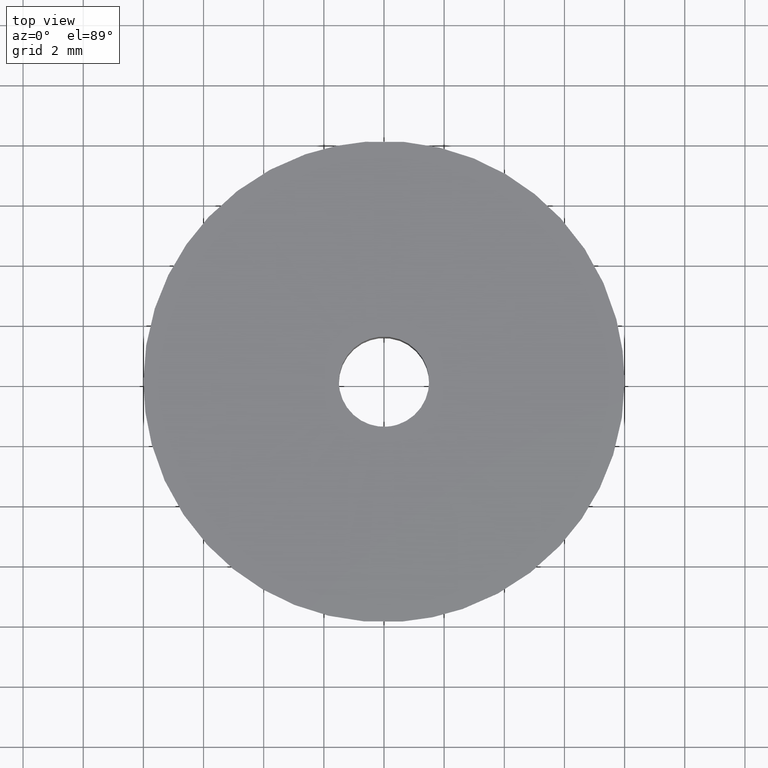
[diagram: clean part render]
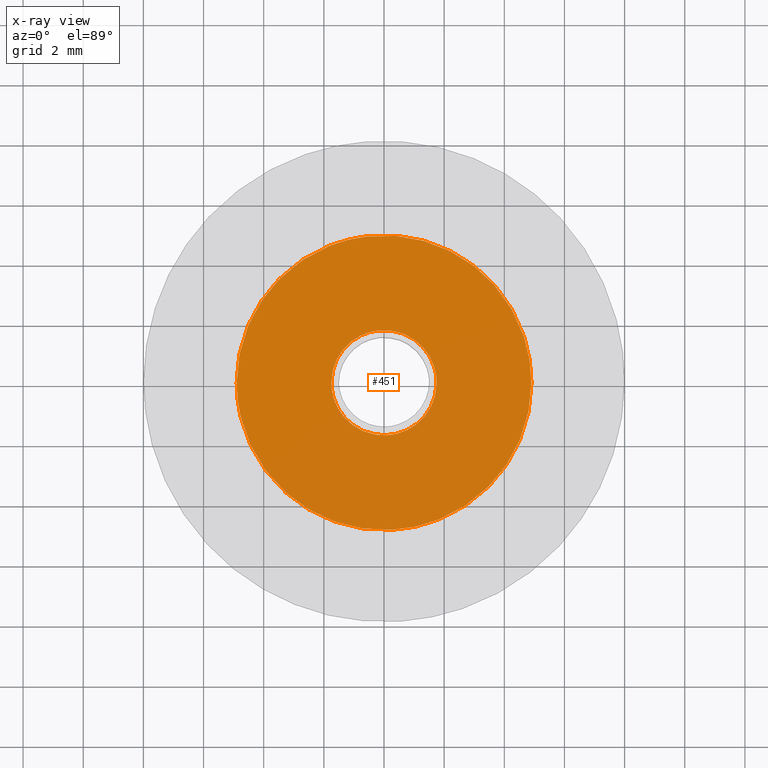
[diagram: x-ray — body ghosted, one internal face saturated and labeled with its STEP entity id]
A machine part, top view, then the same camera in x-ray: the body is ghosted and one INTERNAL B-rep face — a face not visible from any outside direction — is saturated and labeled: STEP entity #451.
In plain terms, the highlighted face is a freeform B-spline surface patch.
Its self-contained STEP definition (entity closure, byte-faithful):
#100=CARTESIAN_POINT('',(0.106834944196258,-1.746735897237639,6.800000000000001));
#101=VERTEX_POINT('',#100);
#107=CARTESIAN_POINT('',(1.750000000000000,0.0,6.800000000000000));
#108=VERTEX_POINT('',#107);
#109=CARTESIAN_POINT('',(1.750000000000000,0.0,6.800000000000000));
#110=CARTESIAN_POINT('',(1.750000000000000,-1.646235617065599,6.800000000000002));
#111=CARTESIAN_POINT('',(0.106834944196258,-1.746735897237639,6.800000000000002));
#119=(BOUNDED_CURVE()B_SPLINE_CURVE(2,(#109,#110,#111),.UNSPECIFIED.,.F.,.U.)B_SPLINE_CURVE_WITH_KNOTS((3,3),(0.500000000000000,0.739332962239942),.UNSPECIFIED.)CURVE()GEOMETRIC_REPRESENTATION_ITEM()RATIONAL_B_SPLINE_CURVE((1.0,0.719603993285539,0.976072041668859))REPRESENTATION_ITEM(''));
#120=EDGE_CURVE('',#108,#101,#119,.T.);
#122=CARTESIAN_POINT('',(-0.206559910678980,1.737766671132891,6.800000000000000));
#123=VERTEX_POINT('',#122);
#124=CARTESIAN_POINT('',(-0.206559910678980,1.737766671132892,6.800000000000001));
#125=CARTESIAN_POINT('',(-0.103642209420809,1.750000000000000,6.800000000000001));
#126=CARTESIAN_POINT('',(0.0,1.750000000000000,6.800000000000000));
#127=CARTESIAN_POINT('',(1.750000000000000,1.750000000000000,6.800000000000003));
#128=CARTESIAN_POINT('',(1.750000000000000,0.0,6.800000000000000));
#136=(BOUNDED_CURVE()B_SPLINE_CURVE(2,(#124,#125,#126,#127,#128),.UNSPECIFIED.,.F.,.U.)B_SPLINE_CURVE_WITH_KNOTS((3,2,3),(0.229562473509876,0.250000000000000,0.500000000000000),.UNSPECIFIED.)CURVE()GEOMETRIC_REPRESENTATION_ITEM()RATIONAL_B_SPLINE_CURVE((0.956026754176581,0.976055948326890,1.0,0.707106781186547,1.0))REPRESENTATION_ITEM(''));
#137=EDGE_CURVE('',#123,#108,#136,.T.);
#181=CARTESIAN_POINT('',(-1.750000000000000,0.0,6.800000000000000));
#182=VERTEX_POINT('',#181);
#183=CARTESIAN_POINT('',(-1.750000000000000,0.0,6.800000000000000));
#184=CARTESIAN_POINT('',(-1.750000000000000,1.554305420361475,6.800000000000002));
#185=CARTESIAN_POINT('',(-0.206559910678980,1.737766671132891,6.800000000000000));
#193=(BOUNDED_CURVE()B_SPLINE_CURVE(2,(#183,#184,#185),.UNSPECIFIED.,.F.,.U.)B_SPLINE_CURVE_WITH_KNOTS((3,3),(0.0,0.229562473509877),.UNSPECIFIED.)CURVE()GEOMETRIC_REPRESENTATION_ITEM()RATIONAL_B_SPLINE_CURVE((1.0,0.731050832859657,0.956026754176581))REPRESENTATION_ITEM(''));
#194=EDGE_CURVE('',#182,#123,#193,.T.);
#196=CARTESIAN_POINT('',(0.106834944196258,-1.746735897237639,6.800000000000001));
#197=CARTESIAN_POINT('',(0.053467335782817,-1.750000000000000,6.800000000000000));
#198=CARTESIAN_POINT('',(0.0,-1.750000000000000,6.800000000000000));
#199=CARTESIAN_POINT('',(-1.750000000000000,-1.750000000000000,6.800000000000003));
#200=CARTESIAN_POINT('',(-1.750000000000000,0.0,6.800000000000000));
#208=(BOUNDED_CURVE()B_SPLINE_CURVE(2,(#196,#197,#198,#199,#200),.UNSPECIFIED.,.F.,.U.)B_SPLINE_CURVE_WITH_KNOTS((3,2,3),(0.739332962239942,0.750000000000000,1.0),.UNSPECIFIED.)CURVE()GEOMETRIC_REPRESENTATION_ITEM()RATIONAL_B_SPLINE_CURVE((0.976072041668858,0.987502787901008,1.0,0.707106781186547,1.0))REPRESENTATION_ITEM(''));
#209=EDGE_CURVE('',#101,#182,#208,.T.);
#271=CARTESIAN_POINT('',(-0.578364217952661,4.865747098995112,6.799999999999999));
#272=VERTEX_POINT('',#271);
#278=CARTESIAN_POINT('',(4.900000000000000,0.0,6.800000000000000));
#279=VERTEX_POINT('',#278);
#280=CARTESIAN_POINT('',(-0.578364217952661,4.865747098995112,6.799999999999999));
#281=CARTESIAN_POINT('',(-0.290196401692608,4.900000000000000,6.800000000000000));
#282=CARTESIAN_POINT('',(0.0,4.900000000000000,6.800000000000000));
#283=CARTESIAN_POINT('',(4.899999999999999,4.899999999999999,6.800000000000003));
#284=CARTESIAN_POINT('',(4.900000000000000,0.0,6.800000000000000));
#292=(BOUNDED_CURVE()B_SPLINE_CURVE(2,(#280,#281,#282,#283,#284),.UNSPECIFIED.,.F.,.U.)B_SPLINE_CURVE_WITH_KNOTS((3,2,3),(0.229562596188854,0.250000000000000,0.500000000000000),.UNSPECIFIED.)CURVE()GEOMETRIC_REPRESENTATION_ITEM()RATIONAL_B_SPLINE_CURVE((0.956026994632539,0.976056092054253,1.0,0.707106781186547,1.0))REPRESENTATION_ITEM(''));
#293=EDGE_CURVE('',#272,#279,#292,.T.);
#295=CARTESIAN_POINT('',(0.299133727549089,-4.890860764019517,6.799999999999999));
#296=VERTEX_POINT('',#295);
#297=CARTESIAN_POINT('',(4.900000000000000,0.0,6.800000000000000));
#298=CARTESIAN_POINT('',(4.899999999999999,-4.609463614431978,6.800000000000001));
#299=CARTESIAN_POINT('',(0.299133727549089,-4.890860764019517,6.799999999999999));
#307=(BOUNDED_CURVE()B_SPLINE_CURVE(2,(#297,#298,#299),.UNSPECIFIED.,.F.,.U.)B_SPLINE_CURVE_WITH_KNOTS((3,3),(0.500000000000000,0.739333107458191),.UNSPECIFIED.)CURVE()GEOMETRIC_REPRESENTATION_ITEM()RATIONAL_B_SPLINE_CURVE((1.0,0.719603823151778,0.976072352899409))REPRESENTATION_ITEM(''));
#308=EDGE_CURVE('',#279,#296,#307,.T.);
#382=CARTESIAN_POINT('',(-4.900000000000000,0.0,6.800000000000000));
#383=VERTEX_POINT('',#382);
#384=CARTESIAN_POINT('',(0.299133727549089,-4.890860764019517,6.799999999999999));
#385=CARTESIAN_POINT('',(0.149706476306691,-4.900000000000000,6.799999999999999));
#386=CARTESIAN_POINT('',(0.0,-4.900000000000000,6.800000000000000));
#387=CARTESIAN_POINT('',(-4.899999999999999,-4.899999999999999,6.800000000000003));
#388=CARTESIAN_POINT('',(-4.900000000000000,0.0,6.800000000000000));
#396=(BOUNDED_CURVE()B_SPLINE_CURVE(2,(#384,#385,#386,#387,#388),.UNSPECIFIED.,.F.,.U.)B_SPLINE_CURVE_WITH_KNOTS((3,2,3),(0.739333107458191,0.750000000000000,1.0),.UNSPECIFIED.)CURVE()GEOMETRIC_REPRESENTATION_ITEM()RATIONAL_B_SPLINE_CURVE((0.976072352899409,0.987502958034770,1.0,0.707106781186547,1.0))REPRESENTATION_ITEM(''));
#397=EDGE_CURVE('',#296,#383,#396,.T.);
#399=CARTESIAN_POINT('',(-4.900000000000000,0.0,6.800000000000000));
#400=CARTESIAN_POINT('',(-4.899999999999999,4.352058358396589,6.800000000000001));
#401=CARTESIAN_POINT('',(-0.578364217952661,4.865747098995112,6.799999999999999));
#409=(BOUNDED_CURVE()B_SPLINE_CURVE(2,(#399,#400,#401),.UNSPECIFIED.,.F.,.U.)B_SPLINE_CURVE_WITH_KNOTS((3,3),(0.0,0.229562596188854),.UNSPECIFIED.)CURVE()GEOMETRIC_REPRESENTATION_ITEM()RATIONAL_B_SPLINE_CURVE((1.0,0.731050689132295,0.956026994632539))REPRESENTATION_ITEM(''));
#410=EDGE_CURVE('',#383,#272,#409,.T.);
#434=CARTESIAN_POINT('',(5.389510073001086,-5.389390995347225,6.800000000000000));
#435=CARTESIAN_POINT('',(-5.389510248238743,-5.389390995347225,6.800000000000001));
#436=CARTESIAN_POINT('',(5.389510073001086,5.389420873367512,6.800000000000000));
#437=CARTESIAN_POINT('',(-5.389510248238743,5.389420873367512,6.800000000000001));
#438=B_SPLINE_SURFACE_WITH_KNOTS('',1,1,((#434,#436),(#435,#437)),.UNSPECIFIED.,.F.,.F.,.U.,(2,2),(2,2),(0.0,10.779020321239830),(0.0,10.778811868714740),.UNSPECIFIED.);
#439=ORIENTED_EDGE('',*,*,#397,.F.);
#440=ORIENTED_EDGE('',*,*,#308,.F.);
#441=ORIENTED_EDGE('',*,*,#293,.F.);
#442=ORIENTED_EDGE('',*,*,#410,.F.);
#443=EDGE_LOOP('',(#439,#440,#441,#442));
#444=FACE_OUTER_BOUND('',#443,.T.);
#445=ORIENTED_EDGE('',*,*,#120,.T.);
#446=ORIENTED_EDGE('',*,*,#209,.T.);
#447=ORIENTED_EDGE('',*,*,#194,.T.);
#448=ORIENTED_EDGE('',*,*,#137,.T.);
#449=EDGE_LOOP('',(#445,#446,#447,#448));
#450=FACE_BOUND('',#449,.T.);
#451=ADVANCED_FACE('',(#444,#450),#438,.F.);